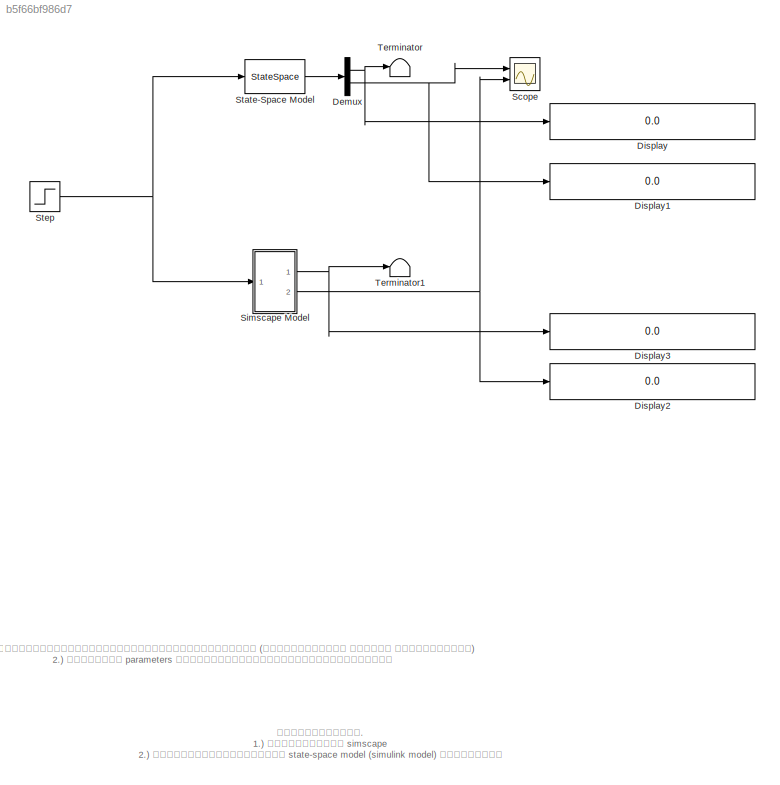
MODEL slx_b5f66bf986d7
KIND model
CONFIG AbsTol = auto
CONFIG EnableMultiTasking = off
CONFIG FixedStep = auto
CONFIG MaxStep = auto
CONFIG MinStep = auto
CONFIG RelTol = 1e-3
CONFIG SampleTimeConstraint = Unconstrained
CONFIG SolverName = VariableStepAuto
CONFIG StartTime = 0.0
CONFIG StopTime = 10.0
BLOCK [Demux] Demux
  Outputs = 2
  Ports = [1, 2]
BLOCK [Display] Display
  Decimation = 1
  Format = long
  Ports = [1]
BLOCK [Display] Display1
  Decimation = 1
  Format = long
  Ports = [1]
BLOCK [Display] Display2
  Decimation = 1
  Format = long
  Ports = [1]
BLOCK [Display] Display3
  Decimation = 1
  Format = long
  Ports = [1]
BLOCK [Scope] Scope
  Floating = off
  NumInputPorts = 2
  Ports = [2]
  ScopeSpecificationString = Simulink.scopes.TimeScopeBlockCfg('CurrentConfiguration', extmgr.ConfigurationSet(extmgr.Configuration('Core','General UI',true),extmgr.Configuration('Core','Source UI',true),extmgr.Configuration('Sources','WiredSimulink',true),extmgr.Configuration('Visuals','Time Domain',true,'SerializedDisplays',{struct('MinYLimReal','-0.00972','MaxYLimReal','0.08748','YLabelReal','','MinYLimMag','0.00000','MaxY...<+2044ch>
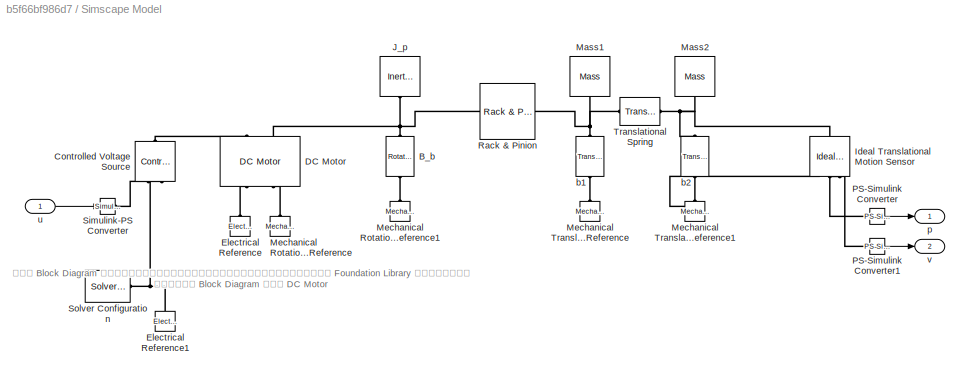
BLOCK [SubSystem] Simscape Model
  Ports = [1, 2]
  RequestExecContextInheritance = off
BLOCK [Reference] Simscape Model/B_b  REF=fl_lib/Mechanical/Rotational Elements/Rotational Damper
  NameLocation = right
  Ports = [0, 0, 0, 0, 0, 1, 1]
  SourceBlock = fl_lib/Mechanical/Rotational Elements/Rotational Damper
  SourceProductBaseCode = SS
  SourceType = Rotational Damper
BLOCK [Reference] Simscape Model/Controlled Voltage Source  REF=fl_lib/Electrical/Electrical Sources/Controlled Voltage
Source
  NameLocation = right
  Ports = [0, 0, 0, 0, 0, 1, 2]
  SourceBlock = fl_lib/Electrical/Electrical Sources/Controlled Voltage\nSource
  SourceProductBaseCode = SS
  SourceType = Controlled Voltage\nSource
BLOCK [Reference] Simscape Model/DC Motor  REF=ee_lib/Electromechanical/Brushed Motors/DC Motor
  NameLocation = right
  Ports = [0, 0, 0, 0, 0, 2, 2]
  SourceBlock = ee_lib/Electromechanical/Brushed Motors/DC Motor
  SourceProductBaseCode = PS
  SourceType = DC Motor
BLOCK [Reference] Simscape Model/Electrical Reference  REF=fl_lib/Electrical/Electrical Elements/Electrical Reference
  NameLocation = right
  Ports = [0, 0, 0, 0, 0, 1]
  SourceBlock = fl_lib/Electrical/Electrical Elements/Electrical Reference
  SourceProductBaseCode = SS
  SourceType = Electrical Reference
BLOCK [Reference] Simscape Model/Electrical Reference1  REF=fl_lib/Electrical/Electrical Elements/Electrical Reference
  NameLocation = right
  Ports = [0, 0, 0, 0, 0, 1]
  SourceBlock = fl_lib/Electrical/Electrical Elements/Electrical Reference
  SourceProductBaseCode = SS
  SourceType = Electrical Reference
BLOCK [Reference] Simscape Model/Ideal Translational Motion Sensor  REF=fl_lib/Mechanical/Mechanical Sensors/Ideal Translational
Motion Sensor
  NameLocation = left
  Ports = [0, 0, 0, 0, 0, 1, 3]
  SourceBlock = fl_lib/Mechanical/Mechanical Sensors/Ideal Translational\nMotion Sensor
  SourceProductBaseCode = SS
  SourceType = Ideal Translational\nMotion Sensor
BLOCK [Reference] Simscape Model/J_p  REF=fl_lib/Mechanical/Rotational Elements/Inertia
  NameLocation = top
  Ports = [0, 0, 0, 0, 0, 1]
  SourceBlock = fl_lib/Mechanical/Rotational Elements/Inertia
  SourceProductBaseCode = SS
  SourceType = Inertia
BLOCK [Reference] Simscape Model/Mass1  REF=fl_lib/Mechanical/Translational
Elements/Mass
  NameLocation = top
  Ports = [0, 0, 0, 0, 0, 1]
  SourceBlock = fl_lib/Mechanical/Translational\nElements/Mass
  SourceProductBaseCode = SS
  SourceType = Mass
BLOCK [Reference] Simscape Model/Mass2  REF=fl_lib/Mechanical/Translational
Elements/Mass
  NameLocation = top
  Ports = [0, 0, 0, 0, 0, 1]
  SourceBlock = fl_lib/Mechanical/Translational\nElements/Mass
  SourceProductBaseCode = SS
  SourceType = Mass
BLOCK [Reference] Simscape Model/Mechanical Rotational Reference  REF=fl_lib/Mechanical/Rotational Elements/Mechanical
Rotational Reference
  NameLocation = right
  Ports = [0, 0, 0, 0, 0, 1]
  SourceBlock = fl_lib/Mechanical/Rotational Elements/Mechanical\nRotational Reference
  SourceProductBaseCode = SS
  SourceType = Mechanical\nRotational Reference
BLOCK [Reference] Simscape Model/Mechanical Rotational Reference1  REF=fl_lib/Mechanical/Rotational Elements/Mechanical
Rotational Reference
  NameLocation = right
  Ports = [0, 0, 0, 0, 0, 1]
  SourceBlock = fl_lib/Mechanical/Rotational Elements/Mechanical\nRotational Reference
  SourceProductBaseCode = SS
  SourceType = Mechanical\nRotational Reference
BLOCK [Reference] Simscape Model/Mechanical Translational Reference  REF=fl_lib/Mechanical/Translational
Elements/Mechanical
Translational
Reference
  NameLocation = right
  Ports = [0, 0, 0, 0, 0, 1]
  SourceBlock = fl_lib/Mechanical/Translational\nElements/Mechanical\nTranslational\nReference
  SourceProductBaseCode = SS
  SourceType = Mechanical\nTranslational\nReference
BLOCK [Reference] Simscape Model/Mechanical Translational Reference1  REF=fl_lib/Mechanical/Translational
Elements/Mechanical
Translational
Reference
  NameLocation = right
  Ports = [0, 0, 0, 0, 0, 1]
  SourceBlock = fl_lib/Mechanical/Translational\nElements/Mechanical\nTranslational\nReference
  SourceProductBaseCode = SS
  SourceType = Mechanical\nTranslational\nReference
BLOCK [Reference] Simscape Model/PS-Simulink Converter  REF=nesl_utility/PS-Simulink
Converter
  Ports = [0, 1, 0, 0, 0, 1]
  SourceBlock = nesl_utility/PS-Simulink\nConverter
  SourceProductBaseCode = PW,SS
  SourceType = PS-Simulink\nConverter
BLOCK [Reference] Simscape Model/PS-Simulink Converter1  REF=nesl_utility/PS-Simulink
Converter
  Ports = [0, 1, 0, 0, 0, 1]
  SourceBlock = nesl_utility/PS-Simulink\nConverter
  SourceProductBaseCode = PW,SS
  SourceType = PS-Simulink\nConverter
BLOCK [Reference] Simscape Model/Rack & Pinion  REF=sdl_lib/Gears/Rotational-
Translational/Rack & Pinion
  Ports = [0, 0, 0, 0, 0, 1, 1]
  SourceBlock = sdl_lib/Gears/Rotational-\nTranslational/Rack & Pinion
  SourceProductBaseCode = LD
  SourceType = Rack & Pinion
BLOCK [Reference] Simscape Model/Simulink-PS Converter  REF=nesl_utility/Simulink-PS
Converter
  Ports = [1, 0, 0, 0, 0, 0, 1]
  SourceBlock = nesl_utility/Simulink-PS\nConverter
  SourceProductBaseCode = PW,SS
  SourceType = Simulink-PS\nConverter
BLOCK [Reference] Simscape Model/Solver Configuration  REF=nesl_utility/Solver
Configuration
  Ports = [0, 0, 0, 0, 0, 0, 1]
  SourceBlock = nesl_utility/Solver\nConfiguration
  SourceProductBaseCode = PW,SS
  SourceType = Solver\nConfiguration
BLOCK [Reference] Simscape Model/Translational Spring  REF=fl_lib/Mechanical/Translational
Elements/Translational Spring
  Ports = [0, 0, 0, 0, 0, 1, 1]
  SourceBlock = fl_lib/Mechanical/Translational\nElements/Translational Spring
  SourceProductBaseCode = SS
  SourceType = Translational Spring
BLOCK [Reference] Simscape Model/b1  REF=fl_lib/Mechanical/Translational
Elements/Translational Damper
  NameLocation = left
  Ports = [0, 0, 0, 0, 0, 1, 1]
  SourceBlock = fl_lib/Mechanical/Translational\nElements/Translational Damper
  SourceProductBaseCode = SS
  SourceType = Translational Damper
BLOCK [Reference] Simscape Model/b2  REF=fl_lib/Mechanical/Translational
Elements/Translational Damper
  NameLocation = right
  Ports = [0, 0, 0, 0, 0, 1, 1]
  SourceBlock = fl_lib/Mechanical/Translational\nElements/Translational Damper
  SourceProductBaseCode = SS
  SourceType = Translational Damper
BLOCK [Outport] Simscape Model/p
BLOCK [Inport] Simscape Model/u
BLOCK [Outport] Simscape Model/v
  Port = 2
BLOCK [StateSpace] State-Space Model
  A = [-1.0285714285714287,0,0.45714285714285713,0.011428571428571425,0;0,-1.0999999999999999,-0.6666666666666666,0,0;-5,5,0,0,0;-0.049999999999999996,0,0,-2.0,0;0,1,0,0,0]
  B = [0;0;0;2;0]
  C = [0,0,0,0,1;0,1,0,0,0]
  D = zeros(2,1)
  InitialCondition = zeros(1,5)
  Ports = [1, 1]
BLOCK [Step] Step
  After = 12
  SampleTime = 0
BLOCK [Terminator] Terminator
BLOCK [Terminator] Terminator1
ANNOTATION (root): 1.) เขียนคำอธิบายของระบบทางกายภาพโดยละเอียด (รูปภาพประกอบ ตัวแปร และคำอธิบาย) 2.) ลองหาค่า parameters ของทั้งระบบที่ดูสมเหตุสมผลหน่อย
ANNOTATION (root): ต้องการให้นศ. 1.) จำลองโดยใช้ simscape 2.) เปรียบเทียบคำตอบกับ state-space model (simulink model) ของตัวเอง
ANNOTATION Simscape Model: ทุก Block Diagram ที่ใช้สำหรับการจำลองระบบจะต้องใช้ Foundation Library เท่านั้น ยกเว้น Block Diagram ของ DC Motor
NET Demux:1 -> Display:1, Terminator:1
NET Demux:2 -> Display1:1, Scope:1
LINE Simscape Model/PS-Simulink Converter1:1 -> Simscape Model/v:1
LINE Simscape Model/PS-Simulink Converter:1 -> Simscape Model/p:1
LINE Simscape Model/u:1 -> Simscape Model/Simulink-PS Converter:1
NET Simscape Model:1 -> Display3:1, Terminator1:1
NET Simscape Model:2 -> Display2:1, Scope:2
LINE State-Space Model:1 -> Demux:1
NET Step:1 -> Simscape Model:1, State-Space Model:1
PLINE Simscape Model/B_b:LConn1 -- Simscape Model/Mechanical Rotational Reference1:LConn1
PNET net1: Simscape Model/B_b:RConn1 -- Simscape Model/DC Motor:LConn2 -- Simscape Model/J_p:LConn1 -- Simscape Model/Rack & Pinion:LConn1
PLINE Simscape Model/Controlled Voltage Source:LConn1 -- Simscape Model/DC Motor:LConn1
PLINE Simscape Model/Controlled Voltage Source:RConn1 -- Simscape Model/Simulink-PS Converter:RConn1
PNET net2: Simscape Model/Controlled Voltage Source:RConn2 -- Simscape Model/Electrical Reference1:LConn1 -- Simscape Model/Solver Configuration:RConn1
PLINE Simscape Model/DC Motor:RConn1 -- Simscape Model/Electrical Reference:LConn1
PLINE Simscape Model/DC Motor:RConn2 -- Simscape Model/Mechanical Rotational Reference:LConn1
PNET net3: Simscape Model/Ideal Translational Motion Sensor:LConn1 -- Simscape Model/Mass2:LConn1 -- Simscape Model/Translational Spring:RConn1 -- Simscape Model/b2:LConn1
PNET net4: Simscape Model/Ideal Translational Motion Sensor:RConn1 -- Simscape Model/Mechanical Translational Reference1:LConn1 -- Simscape Model/b2:RConn1
PLINE Simscape Model/Ideal Translational Motion Sensor:RConn2 -- Simscape Model/PS-Simulink Converter1:LConn1
PLINE Simscape Model/Ideal Translational Motion Sensor:RConn3 -- Simscape Model/PS-Simulink Converter:LConn1
PNET net5: Simscape Model/Mass1:LConn1 -- Simscape Model/Rack & Pinion:RConn1 -- Simscape Model/Translational Spring:LConn1 -- Simscape Model/b1:LConn1
PLINE Simscape Model/Mechanical Translational Reference:LConn1 -- Simscape Model/b1:RConn1
note: NET lines group one-source signal fan-out (src -> all destinations, sorted); 1:1 wires keep LINE; PNET lines group multi-terminal physical nets as a canonical sorted terminal list (undirected conserving connections); 2-terminal nets keep the pairwise PLINE form
